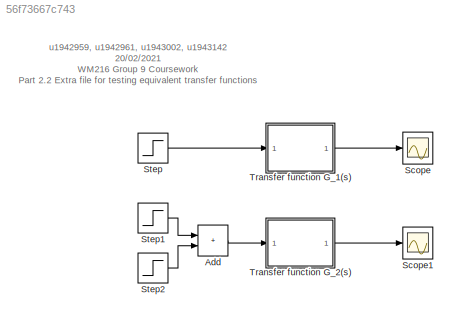
MODEL slx_56f73667c743
KIND model
CONFIG AbsTol = auto
CONFIG EnableMultiTasking = off
CONFIG FixedStep = auto
CONFIG InitFcn = SimFramework('model_parameters.json');
CONFIG MaxStep = auto
CONFIG MinStep = auto
CONFIG RelTol = 1e-3
CONFIG SampleTimeConstraint = Unconstrained
CONFIG SolverName = VariableStepAuto
CONFIG StartTime = 0.0
CONFIG StopTime = 10
WORKSPACE source: mxarray member
WORKSPACE D = 0.5
WORKSPACE Fsin = 1
WORKSPACE Fstep = 10
WORKSPACE FstepOffTime = 5
WORKSPACE FstepOnTime = 1
WORKSPACE K = 500
WORKSPACE K1 = 5
WORKSPACE L = 0.0005
WORKSPACE R = 75
WORKSPACE StopTime = 6
WORKSPACE Vb = 0.1
WORKSPACE Vsin = 1
WORKSPACE Vstep = 1
WORKSPACE VstepOffTime = 100
WORKSPACE VstepOnTime = 1
WORKSPACE couple = 1
WORKSPACE freq = 1000
WORKSPACE m = 0.004
WORKSPACE name = 'DerivedTransferFunctions'
WORKSPACE step = 1
BLOCK [Sum] Add
  IconShape = rectangular
  Ports = [2, 1]
BLOCK [Scope] Scope
  Floating = off
  NumInputPorts = 1
  Ports = [1]
  ScopeSpecificationString = Simulink.scopes.TimeScopeBlockCfg('CurrentConfiguration', extmgr.ConfigurationSet(extmgr.Configuration('Core','General UI',true),extmgr.Configuration('Core','Source UI',true),extmgr.Configuration('Sources','WiredSimulink',true),extmgr.Configuration('Visuals','Time Domain',true,'SerializedDisplays',{struct('MinYLimReal','-0.00167','MaxYLimReal','0.015','YLabelReal','i (A)','MinYLimMag','0.00000','M...<+1438ch>
BLOCK [Scope] Scope1
  Floating = off
  NumInputPorts = 1
  Ports = [1]
  ScopeSpecificationString = Simulink.scopes.TimeScopeBlockCfg('CurrentConfiguration', extmgr.ConfigurationSet(extmgr.Configuration('Core','General UI',true),extmgr.Configuration('Core','Source UI',true),extmgr.Configuration('Sources','WiredSimulink',true,'DataLoggingVariableName','ScopeData1'),extmgr.Configuration('Visuals','Time Domain',true,'SerializedDisplays',{struct('MinYLimReal','-0.01664','MaxYLimReal','0.03657','YLab...<+1562ch>
BLOCK [Step] Step
  SampleTime = 0
BLOCK [Step] Step1
  After = 10
  SampleTime = 0
BLOCK [Step] Step2
  After = -10
  SampleTime = 0
  Time = 5
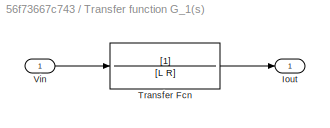
BLOCK [SubSystem] Transfer function G_1(s)
  Ports = [1, 1]
  RequestExecContextInheritance = off
BLOCK [Outport] Transfer function G_1(s)/Iout
BLOCK [TransferFcn] Transfer function G_1(s)/Transfer Fcn
  Denominator = [L R]
BLOCK [Inport] Transfer function G_1(s)/Vin
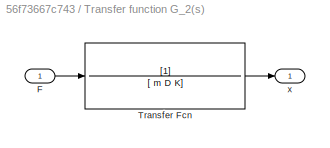
BLOCK [SubSystem] Transfer function G_2(s)
  Ports = [1, 1]
  RequestExecContextInheritance = off
BLOCK [Inport] Transfer function G_2(s)/F
BLOCK [TransferFcn] Transfer function G_2(s)/Transfer Fcn
  Denominator = [ m D K]
BLOCK [Outport] Transfer function G_2(s)/x
ANNOTATION (root): u1942959, u1942961, u1943002, u1943142 20/02/2021 WM216 Group 9 Coursework Part 2.2 Extra file for testing equivalent transfer functions
LINE Add:1 -> Transfer function G_2(s):1
LINE Step1:1 -> Add:1
LINE Step2:1 -> Add:2
LINE Step:1 -> Transfer function G_1(s):1
LINE Transfer function G_1(s)/Transfer Fcn:1 -> Transfer function G_1(s)/Iout:1
LINE Transfer function G_1(s)/Vin:1 -> Transfer function G_1(s)/Transfer Fcn:1
LINE Transfer function G_1(s):1 -> Scope:1
LINE Transfer function G_2(s)/F:1 -> Transfer function G_2(s)/Transfer Fcn:1
LINE Transfer function G_2(s)/Transfer Fcn:1 -> Transfer function G_2(s)/x:1
LINE Transfer function G_2(s):1 -> Scope1:1
